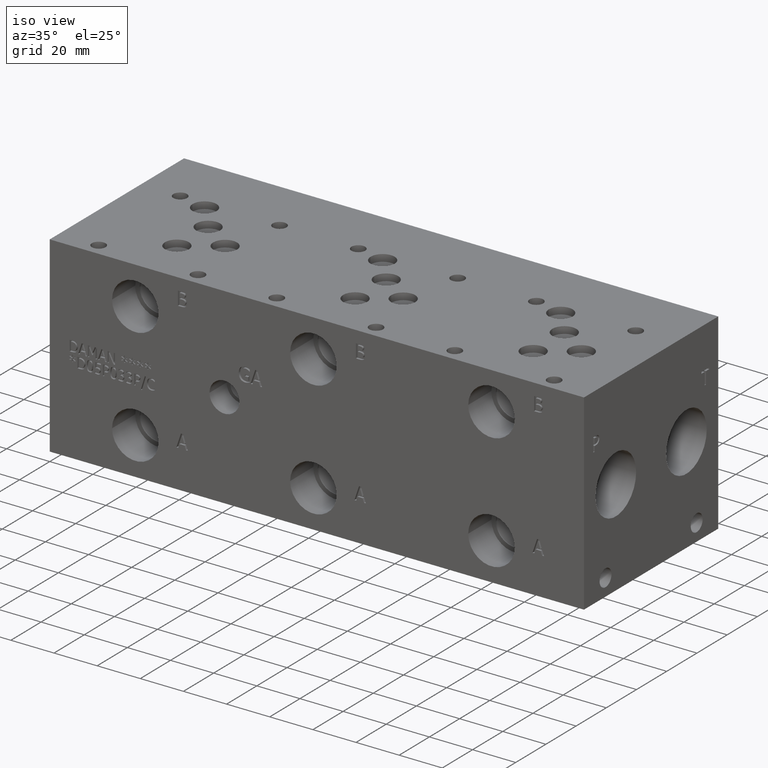
[diagram: clean part render]
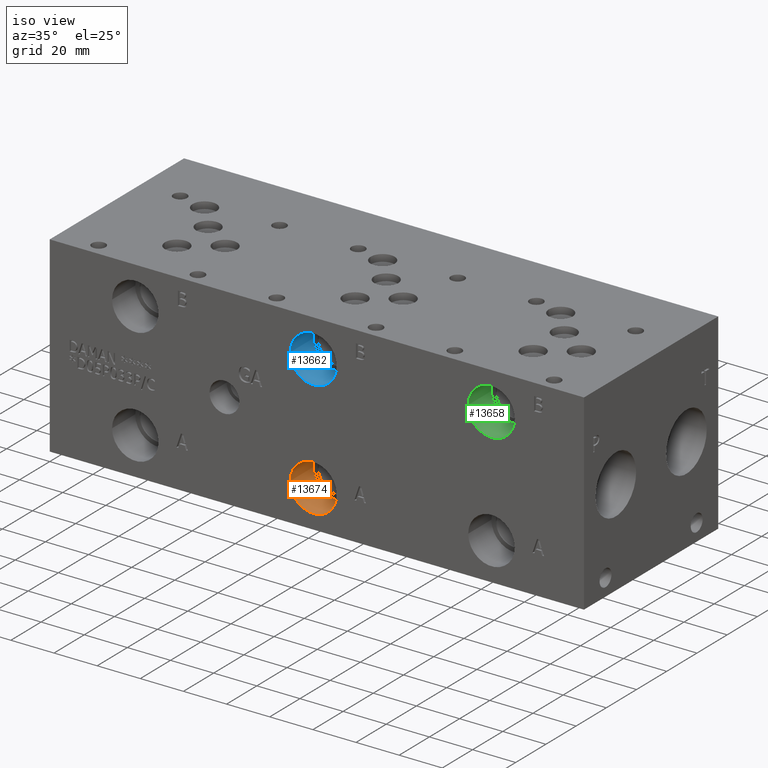
[diagram: same view with three faces highlighted in distinct colors, each labeled with its STEP entity id]
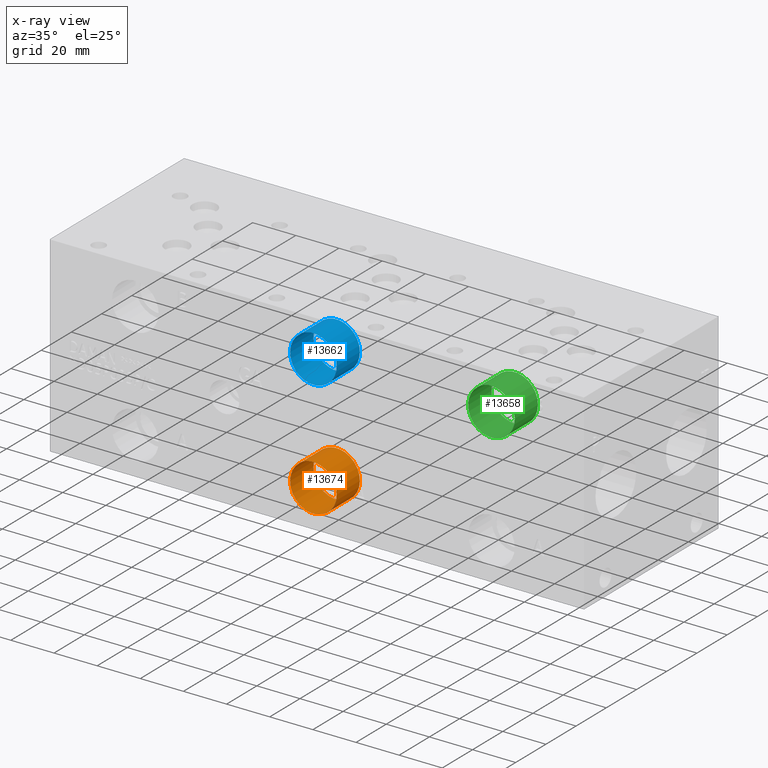
[diagram: x-ray of the same camera — body ghosted, the three highlighted faces saturated]
A machine part, iso view with three faces highlighted in distinct colors.
The next image is the same camera in x-ray (body ghosted, the three faces saturated) — at least one of them is partly hidden behind the body in this view.
Their STEP definitions:

[orange] entity #13674 — the highlighted cylindrical surface (bore or boss wall) has radius 10.795 mm, axis along (0, -1, 0).
#90=CYLINDRICAL_SURFACE('',#14324,10.795);
#335=CIRCLE('',#13795,10.795);
#336=CIRCLE('',#13796,10.795);
#448=CIRCLE('',#14321,10.795);
#449=CIRCLE('',#14322,10.795);
#1720=FACE_OUTER_BOUND('',#2508,.T.);
#2508=EDGE_LOOP('',(#11676,#11677,#11678,#11679,#11680,#11681));
#3807=LINE('',#23341,#5051);
#5051=VECTOR('',#16830,10.795);
#5350=VERTEX_POINT('',#18147);
#5351=VERTEX_POINT('',#18148);
#6268=VERTEX_POINT('',#23334);
#6269=VERTEX_POINT('',#23335);
#6676=EDGE_CURVE('',#5350,#5351,#335,.T.);
#6677=EDGE_CURVE('',#5351,#5350,#336,.T.);
#8123=EDGE_CURVE('',#6268,#6269,#448,.T.);
#8124=EDGE_CURVE('',#6269,#6268,#449,.T.);
#8126=EDGE_CURVE('',#5351,#6269,#3807,.T.);
#11676=ORIENTED_EDGE('',*,*,#6676,.F.);
#11677=ORIENTED_EDGE('',*,*,#6677,.F.);
#11678=ORIENTED_EDGE('',*,*,#8126,.T.);
#11679=ORIENTED_EDGE('',*,*,#8123,.F.);
#11680=ORIENTED_EDGE('',*,*,#8124,.F.);
#11681=ORIENTED_EDGE('',*,*,#8126,.F.);
#13674=ADVANCED_FACE('',(#1720),#90,.F.);
#13795=AXIS2_PLACEMENT_3D('',#18149,#14719,#14720);
#13796=AXIS2_PLACEMENT_3D('',#18150,#14721,#14722);
#14321=AXIS2_PLACEMENT_3D('',#23336,#16822,#16823);
#14322=AXIS2_PLACEMENT_3D('',#23337,#16824,#16825);
#14324=AXIS2_PLACEMENT_3D('',#23340,#16828,#16829);
#14719=DIRECTION('center_axis',(0.,1.,0.));
#14720=DIRECTION('ref_axis',(1.,0.,0.));
#14721=DIRECTION('center_axis',(0.,1.,0.));
#14722=DIRECTION('ref_axis',(1.,0.,0.));
#16822=DIRECTION('center_axis',(0.,-1.,0.));
#16823=DIRECTION('ref_axis',(1.,0.,0.));
#16824=DIRECTION('center_axis',(0.,-1.,0.));
#16825=DIRECTION('ref_axis',(1.,0.,0.));
#16828=DIRECTION('center_axis',(0.,-1.,0.));
#16829=DIRECTION('ref_axis',(1.,0.,0.));
#16830=DIRECTION('',(0.,1.,0.));
#18147=CARTESIAN_POINT('',(133.0198,0.,17.4752));
#18148=CARTESIAN_POINT('',(111.4298,0.,17.4752));
#18149=CARTESIAN_POINT('Origin',(122.2248,0.,17.4752));
#18150=CARTESIAN_POINT('Origin',(122.2248,0.,17.4752));
#23334=CARTESIAN_POINT('',(133.0198,15.367,17.4752));
#23335=CARTESIAN_POINT('',(111.4298,15.367,17.4752));
#23336=CARTESIAN_POINT('Origin',(122.2248,15.367,17.4752));
#23337=CARTESIAN_POINT('Origin',(122.2248,15.367,17.4752));
#23340=CARTESIAN_POINT('Origin',(122.2248,7.6835,17.4752));
#23341=CARTESIAN_POINT('',(111.4298,7.6835,17.4752));

[blue] entity #13662 — the highlighted cylindrical surface (bore or boss wall) has radius 10.795 mm, axis along (0, -1, 0).
#84=CYLINDRICAL_SURFACE('',#14297,10.795);
#329=CIRCLE('',#13789,10.795);
#330=CIRCLE('',#13790,10.795);
#433=CIRCLE('',#14294,10.795);
#434=CIRCLE('',#14295,10.795);
#1708=FACE_OUTER_BOUND('',#2493,.T.);
#2493=EDGE_LOOP('',(#11622,#11623,#11624,#11625,#11626,#11627));
#3798=LINE('',#23287,#5042);
#5042=VECTOR('',#16767,10.795);
#5344=VERTEX_POINT('',#18135);
#5345=VERTEX_POINT('',#18136);
#6250=VERTEX_POINT('',#23280);
#6251=VERTEX_POINT('',#23281);
#6670=EDGE_CURVE('',#5344,#5345,#329,.T.);
#6671=EDGE_CURVE('',#5345,#5344,#330,.T.);
#8099=EDGE_CURVE('',#6250,#6251,#433,.T.);
#8100=EDGE_CURVE('',#6251,#6250,#434,.T.);
#8102=EDGE_CURVE('',#5345,#6251,#3798,.T.);
#11622=ORIENTED_EDGE('',*,*,#6670,.F.);
#11623=ORIENTED_EDGE('',*,*,#6671,.F.);
#11624=ORIENTED_EDGE('',*,*,#8102,.T.);
#11625=ORIENTED_EDGE('',*,*,#8099,.F.);
#11626=ORIENTED_EDGE('',*,*,#8100,.F.);
#11627=ORIENTED_EDGE('',*,*,#8102,.F.);
#13662=ADVANCED_FACE('',(#1708),#84,.F.);
#13789=AXIS2_PLACEMENT_3D('',#18137,#14707,#14708);
#13790=AXIS2_PLACEMENT_3D('',#18138,#14709,#14710);
#14294=AXIS2_PLACEMENT_3D('',#23282,#16759,#16760);
#14295=AXIS2_PLACEMENT_3D('',#23283,#16761,#16762);
#14297=AXIS2_PLACEMENT_3D('',#23286,#16765,#16766);
#14707=DIRECTION('center_axis',(0.,1.,0.));
#14708=DIRECTION('ref_axis',(1.,0.,0.));
#14709=DIRECTION('center_axis',(0.,1.,0.));
#14710=DIRECTION('ref_axis',(1.,0.,0.));
#16759=DIRECTION('center_axis',(0.,-1.,0.));
#16760=DIRECTION('ref_axis',(1.,0.,0.));
#16761=DIRECTION('center_axis',(0.,-1.,0.));
#16762=DIRECTION('ref_axis',(1.,0.,0.));
#16765=DIRECTION('center_axis',(0.,-1.,0.));
#16766=DIRECTION('ref_axis',(1.,0.,0.));
#16767=DIRECTION('',(0.,1.,0.));
#18135=CARTESIAN_POINT('',(133.0198,0.,71.4248));
#18136=CARTESIAN_POINT('',(111.4298,0.,71.4248));
#18137=CARTESIAN_POINT('Origin',(122.2248,0.,71.4248));
#18138=CARTESIAN_POINT('Origin',(122.2248,0.,71.4248));
#23280=CARTESIAN_POINT('',(133.0198,15.367,71.4248));
#23281=CARTESIAN_POINT('',(111.4298,15.367,71.4248));
#23282=CARTESIAN_POINT('Origin',(122.2248,15.367,71.4248));
#23283=CARTESIAN_POINT('Origin',(122.2248,15.367,71.4248));
#23286=CARTESIAN_POINT('Origin',(122.2248,7.6835,71.4248));
#23287=CARTESIAN_POINT('',(111.4298,7.6835,71.4248));

[green] entity #13658 — the highlighted cylindrical surface (bore or boss wall) has radius 10.795 mm, axis along (0, -1, 0).
#82=CYLINDRICAL_SURFACE('',#14288,10.795);
#327=CIRCLE('',#13787,10.795);
#328=CIRCLE('',#13788,10.795);
#428=CIRCLE('',#14285,10.795);
#429=CIRCLE('',#14286,10.795);
#1704=FACE_OUTER_BOUND('',#2488,.T.);
#2488=EDGE_LOOP('',(#11604,#11605,#11606,#11607,#11608,#11609));
#3795=LINE('',#23269,#5039);
#5039=VECTOR('',#16746,10.795);
#5342=VERTEX_POINT('',#18131);
#5343=VERTEX_POINT('',#18132);
#6244=VERTEX_POINT('',#23262);
#6245=VERTEX_POINT('',#23263);
#6668=EDGE_CURVE('',#5342,#5343,#327,.T.);
#6669=EDGE_CURVE('',#5343,#5342,#328,.T.);
#8091=EDGE_CURVE('',#6244,#6245,#428,.T.);
#8092=EDGE_CURVE('',#6245,#6244,#429,.T.);
#8094=EDGE_CURVE('',#5343,#6245,#3795,.T.);
#11604=ORIENTED_EDGE('',*,*,#6668,.F.);
#11605=ORIENTED_EDGE('',*,*,#6669,.F.);
#11606=ORIENTED_EDGE('',*,*,#8094,.T.);
#11607=ORIENTED_EDGE('',*,*,#8091,.F.);
#11608=ORIENTED_EDGE('',*,*,#8092,.F.);
#11609=ORIENTED_EDGE('',*,*,#8094,.F.);
#13658=ADVANCED_FACE('',(#1704),#82,.F.);
#13787=AXIS2_PLACEMENT_3D('',#18133,#14703,#14704);
#13788=AXIS2_PLACEMENT_3D('',#18134,#14705,#14706);
#14285=AXIS2_PLACEMENT_3D('',#23264,#16738,#16739);
#14286=AXIS2_PLACEMENT_3D('',#23265,#16740,#16741);
#14288=AXIS2_PLACEMENT_3D('',#23268,#16744,#16745);
#14703=DIRECTION('center_axis',(0.,1.,0.));
#14704=DIRECTION('ref_axis',(1.,0.,0.));
#14705=DIRECTION('center_axis',(0.,1.,0.));
#14706=DIRECTION('ref_axis',(1.,0.,0.));
#16738=DIRECTION('center_axis',(0.,-1.,0.));
#16739=DIRECTION('ref_axis',(1.,0.,0.));
#16740=DIRECTION('center_axis',(0.,-1.,0.));
#16741=DIRECTION('ref_axis',(1.,0.,0.));
#16744=DIRECTION('center_axis',(0.,-1.,0.));
#16745=DIRECTION('ref_axis',(1.,0.,0.));
#16746=DIRECTION('',(0.,1.,0.));
#18131=CARTESIAN_POINT('',(215.5698,0.,71.4248));
#18132=CARTESIAN_POINT('',(193.9798,0.,71.4248));
#18133=CARTESIAN_POINT('Origin',(204.7748,0.,71.4248));
#18134=CARTESIAN_POINT('Origin',(204.7748,0.,71.4248));
#23262=CARTESIAN_POINT('',(215.5698,15.367,71.4248));
#23263=CARTESIAN_POINT('',(193.9798,15.367,71.4248));
#23264=CARTESIAN_POINT('Origin',(204.7748,15.367,71.4248));
#23265=CARTESIAN_POINT('Origin',(204.7748,15.367,71.4248));
#23268=CARTESIAN_POINT('Origin',(204.7748,7.6835,71.4248));
#23269=CARTESIAN_POINT('',(193.9798,7.6835,71.4248));